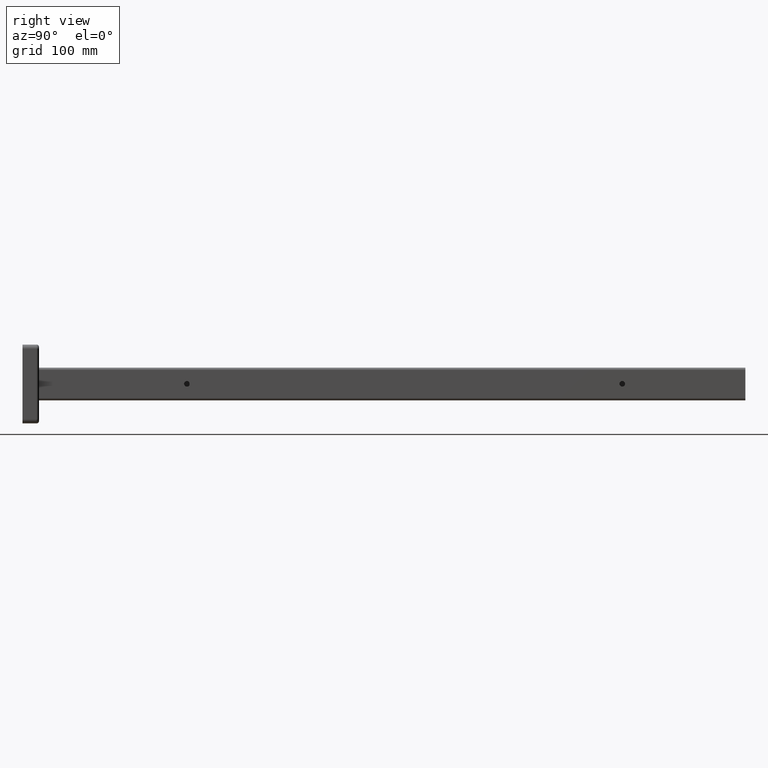
[diagram: clean part render]
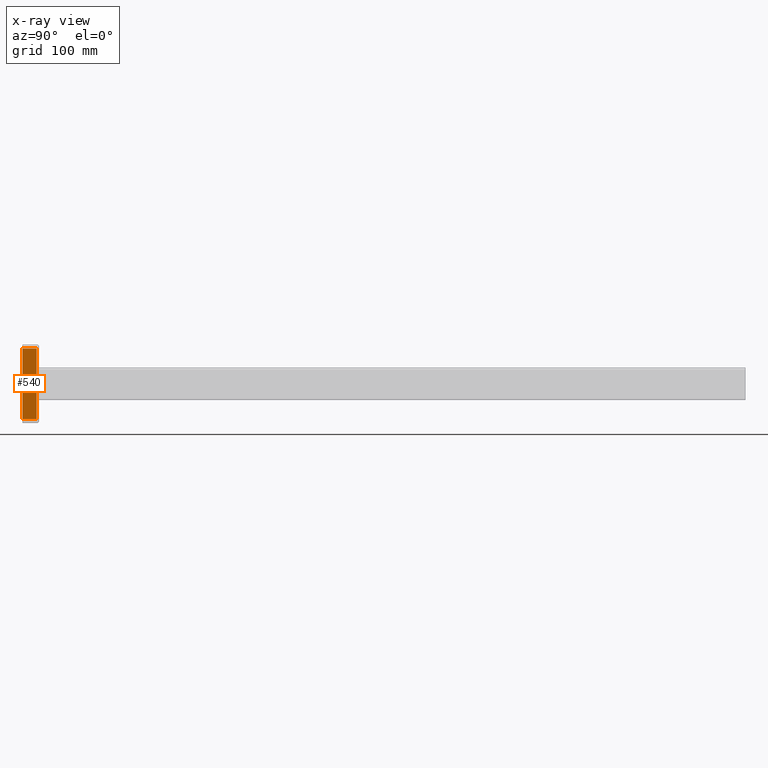
[diagram: x-ray — body ghosted, one internal face saturated and labeled with its STEP entity id]
A machine part, right view, then the same camera in x-ray: the body is ghosted and one INTERNAL B-rep face — a face not visible from any outside direction — is saturated and labeled: STEP entity #540.
In plain terms, the highlighted planar face has unit normal (-1, 0, 0).
Its self-contained STEP definition (entity closure, byte-faithful):
#298 = PLANE ( 'NONE',  #2685 ) ;
#333 = CARTESIAN_POINT ( 'NONE',  ( 47.00000000000000000, -43.00000000000000000, 17.00000000000000000 ) ) ;
#344 = VERTEX_POINT ( 'NONE', #773 ) ;
#358 = LINE ( 'NONE', #3128, #1962 ) ;
#399 = VECTOR ( 'NONE', #1728, 1000.000000000000000 ) ;
#421 = DIRECTION ( 'NONE',  ( 1.445602896647339200E-016, -1.000000000000000000, 0.0000000000000000000 ) ) ;
#540 = ADVANCED_FACE ( 'NONE', ( #1312 ), #298, .T. ) ;
#746 = VECTOR ( 'NONE', #421, 1000.000000000000000 ) ;
#773 = CARTESIAN_POINT ( 'NONE',  ( 46.99999999999998600, 42.99999999999999300, 17.00000000000000000 ) ) ;
#919 = EDGE_LOOP ( 'NONE', ( #1452, #1290, #2465, #1450 ) ) ;
#1008 = CARTESIAN_POINT ( 'NONE',  ( 46.99999999999998600, 47.99999999999999300, 17.00000000000000000 ) ) ;
#1022 = LINE ( 'NONE', #3448, #399 ) ;
#1252 = VECTOR ( 'NONE', #3282, 1000.000000000000000 ) ;
#1287 = CARTESIAN_POINT ( 'NONE',  ( 47.00000000000000000, -43.00000000000000000, 0.0000000000000000000 ) ) ;
#1290 = ORIENTED_EDGE ( 'NONE', *, *, #2067, .F. ) ;
#1312 = FACE_OUTER_BOUND ( 'NONE', #919, .T. ) ;
#1426 = CARTESIAN_POINT ( 'NONE',  ( 46.99999999999998600, 43.00000000000000000, 0.0000000000000000000 ) ) ;
#1450 = ORIENTED_EDGE ( 'NONE', *, *, #3253, .F. ) ;
#1452 = ORIENTED_EDGE ( 'NONE', *, *, #3565, .F. ) ;
#1458 = DIRECTION ( 'NONE',  ( 1.445602896647339200E-016, -1.000000000000000000, 0.0000000000000000000 ) ) ;
#1728 = DIRECTION ( 'NONE',  ( -0.0000000000000000000, -0.0000000000000000000, -1.000000000000000000 ) ) ;
#1774 = LINE ( 'NONE', #3556, #1252 ) ;
#1962 = VECTOR ( 'NONE', #2296, 1000.000000000000000 ) ;
#2030 = CARTESIAN_POINT ( 'NONE',  ( 46.99999999999998600, 47.99999999999999300, 20.00000000000000000 ) ) ;
#2067 = EDGE_CURVE ( 'NONE', #2912, #344, #358, .T. ) ;
#2295 = VERTEX_POINT ( 'NONE', #1287 ) ;
#2296 = DIRECTION ( 'NONE',  ( 0.0000000000000000000, 0.0000000000000000000, 1.000000000000000000 ) ) ;
#2465 = ORIENTED_EDGE ( 'NONE', *, *, #3550, .F. ) ;
#2604 = DIRECTION ( 'NONE',  ( -1.000000000000000000, -1.445602896647339200E-016, 0.0000000000000000000 ) ) ;
#2685 = AXIS2_PLACEMENT_3D ( 'NONE', #2030, #2604, #1458 ) ;
#2912 = VERTEX_POINT ( 'NONE', #1426 ) ;
#3020 = LINE ( 'NONE', #1008, #746 ) ;
#3128 = CARTESIAN_POINT ( 'NONE',  ( 46.99999999999998600, 43.00000000000000000, 20.00000000000000000 ) ) ;
#3253 = EDGE_CURVE ( 'NONE', #3309, #2295, #1022, .T. ) ;
#3282 = DIRECTION ( 'NONE',  ( -1.445602896647339200E-016, 1.000000000000000000, 0.0000000000000000000 ) ) ;
#3309 = VERTEX_POINT ( 'NONE', #333 ) ;
#3448 = CARTESIAN_POINT ( 'NONE',  ( 47.00000000000000000, -43.00000000000000000, 20.00000000000000000 ) ) ;
#3550 = EDGE_CURVE ( 'NONE', #2295, #2912, #1774, .T. ) ;
#3556 = CARTESIAN_POINT ( 'NONE',  ( 46.99999999999998600, 47.99999999999999300, 0.0000000000000000000 ) ) ;
#3565 = EDGE_CURVE ( 'NONE', #344, #3309, #3020, .T. ) ;